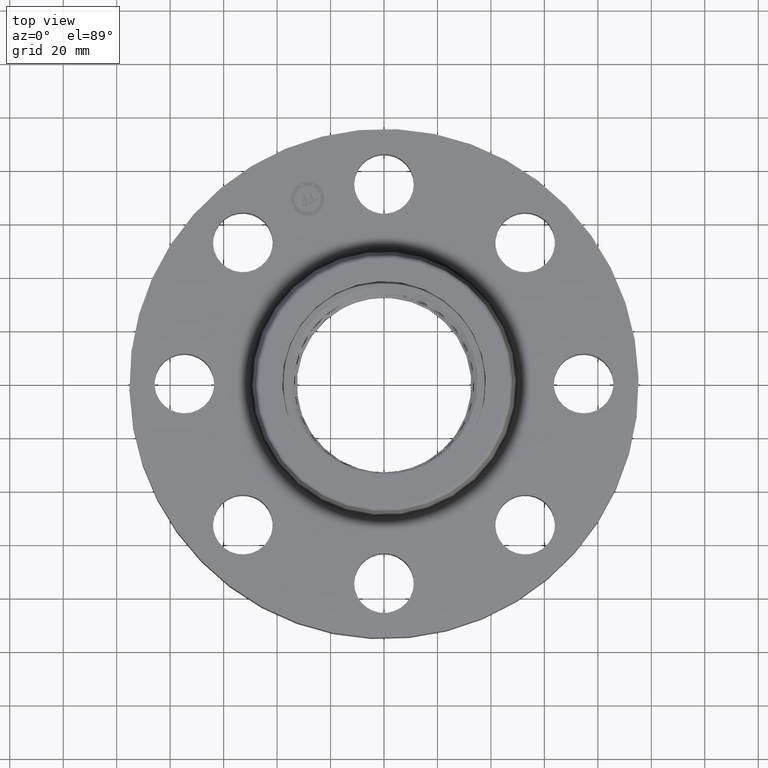
[diagram: clean part render]
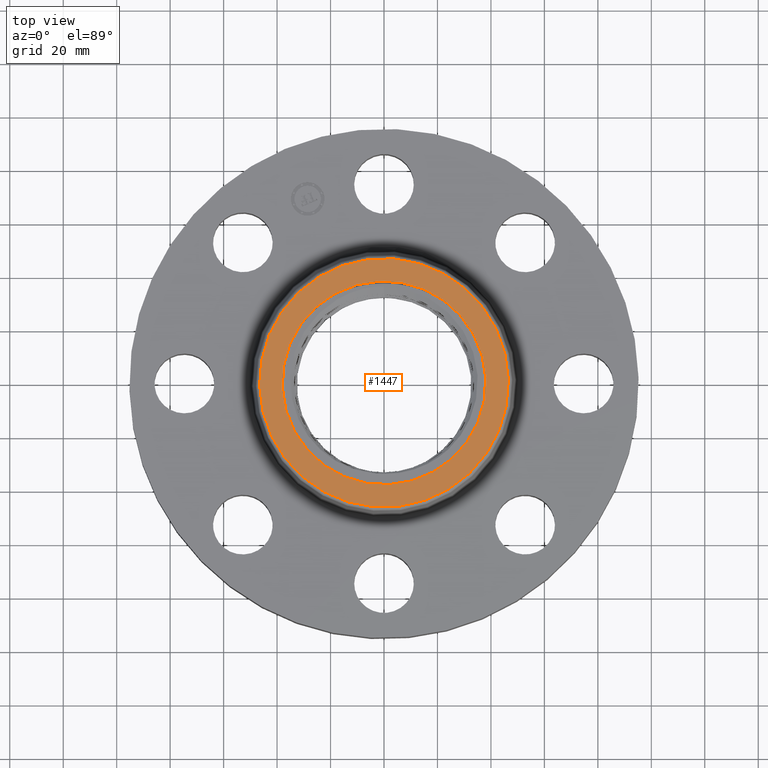
[diagram: same view with one face highlighted and labeled with its STEP entity id]
A machine part, top view. The second image highlights one B-rep face of the part: STEP entity #1447.
In plain terms, the highlighted planar face has unit normal (0, 0, -1).
Its self-contained STEP definition (entity closure, byte-faithful):
#323=AXIS2_PLACEMENT_3D('Circle Axis2P3D',#321,#322,$) ;
#349=AXIS2_PLACEMENT_3D('Circle Axis2P3D',#347,#348,$) ;
#1046=AXIS2_PLACEMENT_3D('Circle Axis2P3D',#1044,#1045,$) ;
#1070=AXIS2_PLACEMENT_3D('Circle Axis2P3D',#1068,#1069,$) ;
#1437=AXIS2_PLACEMENT_3D('Plane Axis2P3D',#1434,#1435,#1436) ;
#321=CARTESIAN_POINT('Axis2P3D Location',(0.,0.,1.62000000001)) ;
#325=CARTESIAN_POINT('Vertex',(0.719138307909,-1.31637384284,1.62000000001)) ;
#327=CARTESIAN_POINT('Vertex',(-0.719138307909,1.31637384284,1.62000000001)) ;
#347=CARTESIAN_POINT('Axis2P3D Location',(0.,0.,1.62000000001)) ;
#1041=CARTESIAN_POINT('Vertex',(-0.878063334648,-1.60728415296,1.62000000001)) ;
#1044=CARTESIAN_POINT('Axis2P3D Location',(0.,0.,1.62000000001)) ;
#1048=CARTESIAN_POINT('Vertex',(0.878063334648,1.60728415296,1.62000000001)) ;
#1068=CARTESIAN_POINT('Axis2P3D Location',(0.,0.,1.62000000001)) ;
#1434=CARTESIAN_POINT('Axis2P3D Location',(0.,1.83149053178,1.62000000001)) ;
#322=DIRECTION('Axis2P3D Direction',(0.,0.,0.0393700787402)) ;
#348=DIRECTION('Axis2P3D Direction',(0.,0.,0.0393700787402)) ;
#1045=DIRECTION('Axis2P3D Direction',(0.,0.,-0.0393700787402)) ;
#1069=DIRECTION('Axis2P3D Direction',(0.,0.,-0.0393700787402)) ;
#1435=DIRECTION('Axis2P3D Direction',(0.,0.,-0.0393700787402)) ;
#1436=DIRECTION('Axis2P3D XDirection',(0.0393700787402,0.,0.)) ;
#1440=ORIENTED_EDGE('',*,*,#1072,.F.) ;
#1441=ORIENTED_EDGE('',*,*,#1050,.F.) ;
#1444=ORIENTED_EDGE('',*,*,#351,.T.) ;
#1445=ORIENTED_EDGE('',*,*,#329,.T.) ;
#1446=FACE_BOUND('',#1443,.T.) ;
#1447=ADVANCED_FACE('PartBody',(#1442,#1446),#1438,.F.) ;
#324=CIRCLE('generated circle',#323,1.50000000001) ;
#350=CIRCLE('generated circle',#349,1.50000000001) ;
#1047=CIRCLE('generated circle',#1046,1.83149053178) ;
#1071=CIRCLE('generated circle',#1070,1.83149053178) ;
#329=EDGE_CURVE('',#326,#328,#324,.F.) ;
#351=EDGE_CURVE('',#328,#326,#350,.F.) ;
#1050=EDGE_CURVE('',#1042,#1049,#1047,.T.) ;
#1072=EDGE_CURVE('',#1049,#1042,#1071,.T.) ;
#1439=EDGE_LOOP('',(#1440,#1441)) ;
#1443=EDGE_LOOP('',(#1444,#1445)) ;
#1442=FACE_OUTER_BOUND('',#1439,.T.) ;
#1438=PLANE('',#1437) ;
#326=VERTEX_POINT('',#325) ;
#328=VERTEX_POINT('',#327) ;
#1042=VERTEX_POINT('',#1041) ;
#1049=VERTEX_POINT('',#1048) ;